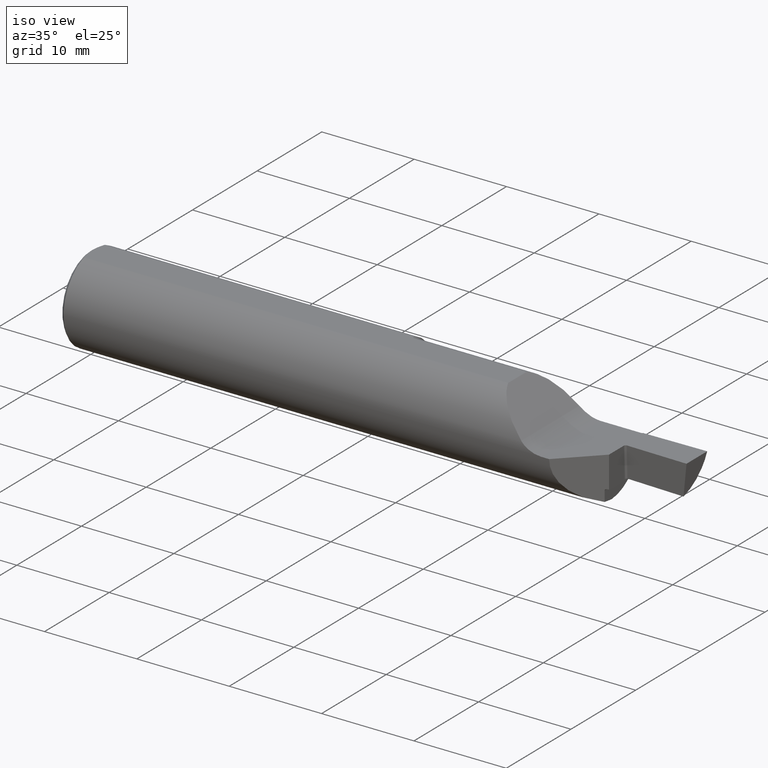
[diagram: clean part render]
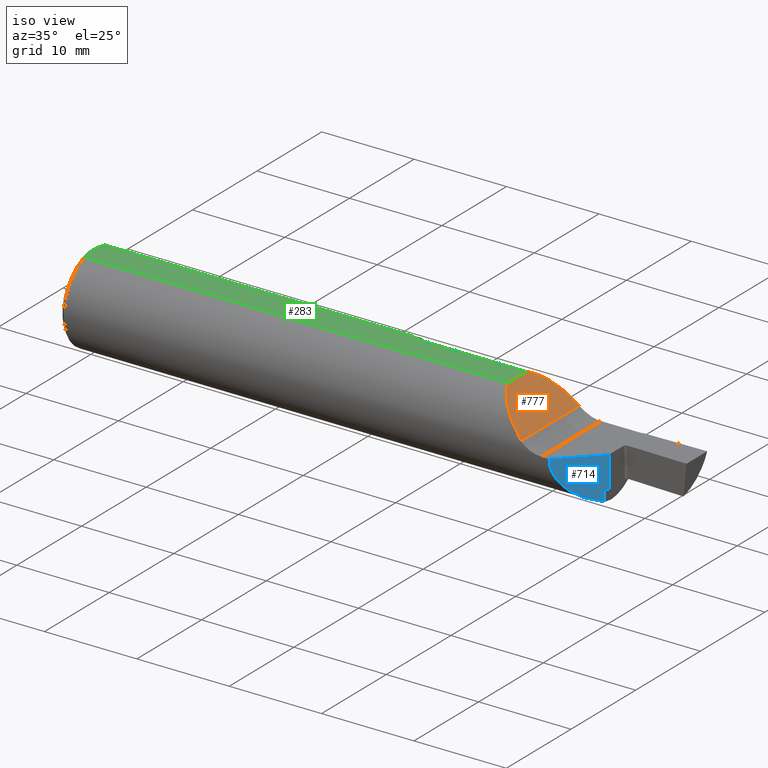
[diagram: same view with three faces highlighted in distinct colors, each labeled with its STEP entity id]
A machine part, iso view with three faces highlighted in distinct colors.
Their STEP definitions:

[orange] entity #777 — the highlighted planar face has unit normal (0.7071, -0, 0.7071).
#15 = VERTEX_POINT ( 'NONE', #43 ) ;
#21 = EDGE_LOOP ( 'NONE', ( #74, #577, #563, #86 ) ) ;
#36 = LINE ( 'NONE', #375, #550 ) ;
#39 = CARTESIAN_POINT ( 'NONE',  ( 1.823649999999999771, -0.06325108694718213631, 0.1763499999999999790 ) ) ;
#43 = CARTESIAN_POINT ( 'NONE',  ( 1.963388347648318932, -0.1837378823544007778, 0.03661165235168151871 ) ) ;
#66 = EDGE_CURVE ( 'NONE', #15, #699, #152, .T. ) ;
#74 = ORIENTED_EDGE ( 'NONE', *, *, #89, .T. ) ;
#86 = ORIENTED_EDGE ( 'NONE', *, *, #66, .F. ) ;
#89 = EDGE_CURVE ( 'NONE', #15, #275, #36, .T. ) ;
#98 =( BOUNDED_CURVE ( )  B_SPLINE_CURVE ( 3, ( #532, #210, #465, #677 ),
 .UNSPECIFIED., .F., .F. ) 
 B_SPLINE_CURVE_WITH_KNOTS ( ( 4, 4 ),
 ( 4.908913714375442439, 5.936585895212762587 ),
 .UNSPECIFIED. ) 
 CURVE ( )  GEOMETRIC_REPRESENTATION_ITEM ( )  RATIONAL_B_SPLINE_CURVE ( ( 1.000000000000000000, 0.9139102658081098562, 0.9139102658081098562, 1.000000000000000000 ) ) 
 REPRESENTATION_ITEM ( '' )  );
#150 = CARTESIAN_POINT ( 'NONE',  ( 1.963388347648318710, 0.1707400671470789555, 0.03661165235168143545 ) ) ;
#152 =( BOUNDED_CURVE ( )  B_SPLINE_CURVE ( 3, ( #232, #631, #707, #39 ),
 .UNSPECIFIED., .F., .T. ) 
 B_SPLINE_CURVE_WITH_KNOTS ( ( 4, 4 ),
 ( 4.909073120026993919, 5.938809479923476076 ),
 .UNSPECIFIED. ) 
 CURVE ( )  GEOMETRIC_REPRESENTATION_ITEM ( )  RATIONAL_B_SPLINE_CURVE ( ( 1.000000000000000000, 0.9135717604705588801, 0.9135717604705588801, 1.000000000000000000 ) ) 
 REPRESENTATION_ITEM ( '' )  );
#157 = LINE ( 'NONE', #496, #827 ) ;
#199 = AXIS2_PLACEMENT_3D ( 'NONE', #416, #492, #619 ) ;
#210 = CARTESIAN_POINT ( 'NONE',  ( 1.897454588124415586, 0.1576130183548815344, 0.1025454118755840249 ) ) ;
#232 = CARTESIAN_POINT ( 'NONE',  ( 1.963388347648318932, -0.1837378823544007778, 0.03661165235168151871 ) ) ;
#275 = VERTEX_POINT ( 'NONE', #150 ) ;
#350 = PLANE ( 'NONE',  #199 ) ;
#375 = CARTESIAN_POINT ( 'NONE',  ( 1.963388347648318932, 0.2873499999999999943, 0.03661165235168144932 ) ) ;
#391 = VERTEX_POINT ( 'NONE', #826 ) ;
#405 = EDGE_CURVE ( 'NONE', #699, #391, #157, .T. ) ;
#416 = CARTESIAN_POINT ( 'NONE',  ( 2.000000000000000000, 0.2873499999999999943, 6.488138984952624897E-16 ) ) ;
#465 = CARTESIAN_POINT ( 'NONE',  ( 1.846487386027261035, 0.1137732605392144519, 0.1535126139727385208 ) ) ;
#492 = DIRECTION ( 'NONE',  ( 0.7071067811865459074, -0.000000000000000000, 0.7071067811865492381 ) ) ;
#496 = CARTESIAN_POINT ( 'NONE',  ( 1.823649999999999771, 0.06325108694718213631, 0.1763499999999999790 ) ) ;
#532 = CARTESIAN_POINT ( 'NONE',  ( 1.963388347648318710, 0.1707400671470789555, 0.03661165235168143545 ) ) ;
#550 = VECTOR ( 'NONE', #776, 39.37007874015748143 ) ;
#563 = ORIENTED_EDGE ( 'NONE', *, *, #405, .F. ) ;
#577 = ORIENTED_EDGE ( 'NONE', *, *, #739, .T. ) ;
#619 = DIRECTION ( 'NONE',  ( 0.7071067811865492381, 0.000000000000000000, -0.7071067811865459074 ) ) ;
#631 = CARTESIAN_POINT ( 'NONE',  ( 1.897364539052141197, -0.1705819631923700119, 0.1026354609478592056 ) ) ;
#677 = CARTESIAN_POINT ( 'NONE',  ( 1.823649999999999771, 0.05054325299224035617, 0.1763499999999999790 ) ) ;
#696 = FACE_OUTER_BOUND ( 'NONE', #21, .T. ) ;
#699 = VERTEX_POINT ( 'NONE', #750 ) ;
#707 = CARTESIAN_POINT ( 'NONE',  ( 1.846378452100291501, -0.1266201564974553662, 0.1536215478997087214 ) ) ;
#739 = EDGE_CURVE ( 'NONE', #275, #391, #98, .T. ) ;
#750 = CARTESIAN_POINT ( 'NONE',  ( 1.823649999999999771, -0.06325108694718213631, 0.1763499999999999790 ) ) ;
#776 = DIRECTION ( 'NONE',  ( 0.000000000000000000, 1.000000000000000000, 0.000000000000000000 ) ) ;
#777 = ADVANCED_FACE ( 'NONE', ( #696 ), #350, .T. ) ;
#826 = CARTESIAN_POINT ( 'NONE',  ( 1.823649999999999771, 0.05054325299224035617, 0.1763499999999999790 ) ) ;
#827 = VECTOR ( 'NONE', #834, 39.37007874015748143 ) ;
#834 = DIRECTION ( 'NONE',  ( -0.000000000000000000, 1.000000000000000000, 0.000000000000000000 ) ) ;

[blue] entity #714 — the highlighted planar face has unit normal (-0.7071, 0.7071, 0).
#9 = ORIENTED_EDGE ( 'NONE', *, *, #711, .T. ) ;
#25 = CARTESIAN_POINT ( 'NONE',  ( 2.234999999999999876, -0.03734999999999999432, -0.1344876965665182389 ) ) ;
#60 = CARTESIAN_POINT ( 'NONE',  ( 2.224070280205729055, -0.04827971979427087001, -0.1810223498814073906 ) ) ;
#71 = CARTESIAN_POINT ( 'NONE',  ( 2.227932842058886642, -0.04441715794111287391, -0.1325528486153344787 ) ) ;
#122 = DIRECTION ( 'NONE',  ( -0.000000000000000000, -0.000000000000000000, 1.000000000000000000 ) ) ;
#143 = CARTESIAN_POINT ( 'NONE',  ( 2.224236754541994987, -0.04811324545800543806, -0.1350949406068810699 ) ) ;
#149 = CARTESIAN_POINT ( 'NONE',  ( 2.224070280205729055, -0.04827971979427086308, -0.1358449287211288825 ) ) ;
#156 = EDGE_CURVE ( 'NONE', #296, #852, #202, .T. ) ;
#171 = CARTESIAN_POINT ( 'NONE',  ( 2.234999999999999876, -0.03734999999999999432, -6.829619984160658046E-17 ) ) ;
#177 = CARTESIAN_POINT ( 'NONE',  ( 2.224070280205729055, -0.04827971979427087001, -0.1810223498814073906 ) ) ;
#190 = CARTESIAN_POINT ( 'NONE',  ( 2.234999999999999876, -0.03734999999999999432, -0.1344876965665182389 ) ) ;
#195 = CARTESIAN_POINT ( 'NONE',  ( 2.138778143966457712, -0.1335718560335421579, -0.1582744381402079736 ) ) ;
#202 = LINE ( 'NONE', #384, #239 ) ;
#206 = PLANE ( 'NONE',  #610 ) ;
#209 = ORIENTED_EDGE ( 'NONE', *, *, #371, .F. ) ;
#239 = VECTOR ( 'NONE', #122, 39.37007874015748143 ) ;
#248 = EDGE_CURVE ( 'NONE', #560, #385, #845, .T. ) ;
#254 = VERTEX_POINT ( 'NONE', #523 ) ;
#271 = CARTESIAN_POINT ( 'NONE',  ( 2.228985250716561950, -0.04336474928343794083, -0.1328576432028670817 ) ) ;
#278 = CARTESIAN_POINT ( 'NONE',  ( 2.224879016162464307, -0.04747098383753514672, -0.1338732983212888028 ) ) ;
#285 = ORIENTED_EDGE ( 'NONE', *, *, #754, .F. ) ;
#296 = VERTEX_POINT ( 'NONE', #25 ) ;
#333 = CARTESIAN_POINT ( 'NONE',  ( 2.228985250716561950, -0.04336474928343794083, -0.1328576432028670817 ) ) ;
#335 = FACE_OUTER_BOUND ( 'NONE', #486, .T. ) ;
#356 = DIRECTION ( 'NONE',  ( 0.000000000000000000, 0.000000000000000000, -1.000000000000000000 ) ) ;
#361 = CARTESIAN_POINT ( 'NONE',  ( 2.084999999999999964, -0.1873499999999999888, -6.829619984160658046E-17 ) ) ;
#368 = CARTESIAN_POINT ( 'NONE',  ( 1.992499999999999938, -0.2798499999999997656, 0.000000000000000000 ) ) ;
#371 = EDGE_CURVE ( 'NONE', #254, #560, #703, .T. ) ;
#384 = CARTESIAN_POINT ( 'NONE',  ( 2.234999999999999876, -0.03734999999999999432, -0.1873499999999999888 ) ) ;
#385 = VERTEX_POINT ( 'NONE', #361 ) ;
#394 = CARTESIAN_POINT ( 'NONE',  ( 2.084999999999999964, -0.1873499999999999888, -0.08827352940062963005 ) ) ;
#409 = DIRECTION ( 'NONE',  ( -0.7071067811865483499, -0.7071067811865467956, 0.000000000000000000 ) ) ;
#438 = CARTESIAN_POINT ( 'NONE',  ( 2.224070280205729055, -0.04827971979427087001, 0.03500000000000000333 ) ) ;
#468 = CARTESIAN_POINT ( 'NONE',  ( 2.225336863143647648, -0.04701313685635223616, -0.1334237589472539731 ) ) ;
#471 = B_SPLINE_CURVE_WITH_KNOTS ( 'NONE', 3,
 ( #535, #149, #143, #278, #468, #472, #71, #271 ),
 .UNSPECIFIED., .F., .F.,
 ( 4, 2, 2, 4 ),
 ( 0.000000000000000000, 5.754371121788219633E-05, 0.0001150874224357643927, 0.0002301748448715287853 ),
 .UNSPECIFIED. ) ;
#472 = CARTESIAN_POINT ( 'NONE',  ( 2.226814067570949351, -0.04553593242905076138, -0.1325587812827005996 ) ) ;
#486 = EDGE_LOOP ( 'NONE', ( #511, #209, #9, #683, #861, #285 ) ) ;
#511 = ORIENTED_EDGE ( 'NONE', *, *, #248, .F. ) ;
#523 = CARTESIAN_POINT ( 'NONE',  ( 2.224070280205729055, -0.04827971979427087001, -0.1366100197960539997 ) ) ;
#535 = CARTESIAN_POINT ( 'NONE',  ( 2.224070280205729055, -0.04827971979427087001, -0.1366100197960539997 ) ) ;
#552 = EDGE_CURVE ( 'NONE', #792, #296, #659, .T. ) ;
#560 = VERTEX_POINT ( 'NONE', #177 ) ;
#565 = VECTOR ( 'NONE', #356, 39.37007874015748143 ) ;
#599 = CARTESIAN_POINT ( 'NONE',  ( 2.230980377373828816, -0.04136962262617105424, -0.1334354641872747549 ) ) ;
#608 = DIRECTION ( 'NONE',  ( -0.7071067811865467956, 0.7071067811865483499, 0.000000000000000000 ) ) ;
#610 = AXIS2_PLACEMENT_3D ( 'NONE', #738, #608, #409 ) ;
#632 = DIRECTION ( 'NONE',  ( 0.7071067811865483499, 0.7071067811865467956, 0.000000000000000000 ) ) ;
#657 = CARTESIAN_POINT ( 'NONE',  ( 2.232985498812884551, -0.03936450118711563861, -0.1339788708684578056 ) ) ;
#658 = CARTESIAN_POINT ( 'NONE',  ( 2.084999999999999964, -0.1873499999999999888, -6.829619984160658046E-17 ) ) ;
#659 =( BOUNDED_CURVE ( )  B_SPLINE_CURVE ( 3, ( #333, #599, #657, #190 ),
 .UNSPECIFIED., .F., .F. ) 
 B_SPLINE_CURVE_WITH_KNOTS ( ( 4, 4 ),
 ( 1.284111299773391668, 1.319139245857699372 ),
 .UNSPECIFIED. ) 
 CURVE ( )  GEOMETRIC_REPRESENTATION_ITEM ( )  RATIONAL_B_SPLINE_CURVE ( ( 1.000000000000000000, 0.9998977561963152683, 0.9998977561963152683, 1.000000000000000000 ) ) 
 REPRESENTATION_ITEM ( '' )  );
#679 = CARTESIAN_POINT ( 'NONE',  ( 2.228985250716561950, -0.04336474928343794083, -0.1328576432028670817 ) ) ;
#683 = ORIENTED_EDGE ( 'NONE', *, *, #552, .T. ) ;
#702 = LINE ( 'NONE', #368, #742 ) ;
#703 = LINE ( 'NONE', #438, #565 ) ;
#711 = EDGE_CURVE ( 'NONE', #254, #792, #471, .T. ) ;
#714 = ADVANCED_FACE ( 'NONE', ( #335 ), #206, .F. ) ;
#738 = CARTESIAN_POINT ( 'NONE',  ( 2.234999999999999876, -0.03734999999999999432, -0.1873499999999999888 ) ) ;
#742 = VECTOR ( 'NONE', #632, 39.37007874015748143 ) ;
#754 = EDGE_CURVE ( 'NONE', #385, #852, #702, .T. ) ;
#792 = VERTEX_POINT ( 'NONE', #679 ) ;
#845 =( BOUNDED_CURVE ( )  B_SPLINE_CURVE ( 3, ( #60, #195, #394, #658 ),
 .UNSPECIFIED., .F., .F. ) 
 B_SPLINE_CURVE_WITH_KNOTS ( ( 4, 4 ),
 ( 4.973027954241882043, 6.283185307179586232 ),
 .UNSPECIFIED. ) 
 CURVE ( )  GEOMETRIC_REPRESENTATION_ITEM ( )  RATIONAL_B_SPLINE_CURVE ( ( 1.000000000000000000, 0.8619999994326646986, 0.8619999994326646986, 1.000000000000000000 ) ) 
 REPRESENTATION_ITEM ( '' )  );
#852 = VERTEX_POINT ( 'NONE', #171 ) ;
#861 = ORIENTED_EDGE ( 'NONE', *, *, #156, .T. ) ;

[green] entity #283 — the highlighted planar face has unit normal (0, 0, -1).
#6 = CARTESIAN_POINT ( 'NONE',  ( 0.01157250466904289656, -0.05309883057899358189, 0.1763500000000000068 ) ) ;
#32 = CARTESIAN_POINT ( 'NONE',  ( 0.003999999999999476197, 2.550090563692220756E-17, 0.1763499999999999790 ) ) ;
#34 = VERTEX_POINT ( 'NONE', #115 ) ;
#38 = LINE ( 'NONE', #689, #469 ) ;
#65 = CARTESIAN_POINT ( 'NONE',  ( 0.004994273251992769995, -0.02144446570098899885, 0.1763499999999999790 ) ) ;
#75 = DIRECTION ( 'NONE',  ( 1.000000000000000000, 0.000000000000000000, 0.000000000000000000 ) ) ;
#77 = ORIENTED_EDGE ( 'NONE', *, *, #843, .F. ) ;
#78 = LINE ( 'NONE', #670, #344 ) ;
#79 = CARTESIAN_POINT ( 'NONE',  ( 1.338826947156392722, 0.05089100678216058188, 0.1763500000000000068 ) ) ;
#85 = DIRECTION ( 'NONE',  ( 0.000000000000000000, 0.000000000000000000, -1.000000000000000000 ) ) ;
#115 = CARTESIAN_POINT ( 'NONE',  ( 0.01499999999999943046, 0.06325108694718213631, 0.1763499999999999790 ) ) ;
#128 = CARTESIAN_POINT ( 'NONE',  ( 0.005015444644058507026, 0.02160243875479323644, 0.1763499999999999790 ) ) ;
#138 = CARTESIAN_POINT ( 'NONE',  ( 0.003999999999999476197, 2.550090563692220756E-17, 0.1763499999999999790 ) ) ;
#144 = CARTESIAN_POINT ( 'NONE',  ( 1.337621628564846787, 0.05225604298120335722, 0.1763500000000000068 ) ) ;
#147 = FACE_OUTER_BOUND ( 'NONE', #780, .T. ) ;
#157 = LINE ( 'NONE', #496, #827 ) ;
#158 = CARTESIAN_POINT ( 'NONE',  ( 1.340000000000000080, 0.05054325299224017576, 0.1763500000000000068 ) ) ;
#166 = AXIS2_PLACEMENT_3D ( 'NONE', #824, #85, #340 ) ;
#189 = VERTEX_POINT ( 'NONE', #466 ) ;
#211 = B_SPLINE_CURVE_WITH_KNOTS ( 'NONE', 3,
 ( #479, #556, #279, #482, #216, #144, #606, #79, #542, #753 ),
 .UNSPECIFIED., .F., .F.,
 ( 4, 2, 2, 2, 4 ),
 ( 0.001068967629214199935, 0.001252800944429019675, 0.001344717602036429437, 0.001390675930840129656, 0.001436634259643829875 ),
 .UNSPECIFIED. ) ;
#216 = CARTESIAN_POINT ( 'NONE',  ( 1.336737058446424209, 0.05385394031618935540, 0.1763500000000000068 ) ) ;
#268 = VERTEX_POINT ( 'NONE', #158 ) ;
#279 = CARTESIAN_POINT ( 'NONE',  ( 1.335371528663762408, 0.05848268389675807810, 0.1763499999999999790 ) ) ;
#283 = ADVANCED_FACE ( 'NONE', ( #147 ), #343, .F. ) ;
#289 = ORIENTED_EDGE ( 'NONE', *, *, #405, .T. ) ;
#321 = CARTESIAN_POINT ( 'NONE',  ( 0.008794551420594657470, 0.04267918597792697000, 0.1763499999999999790 ) ) ;
#328 = CARTESIAN_POINT ( 'NONE',  ( 0.008771136374093822449, -0.04258802525788809440, 0.1763499999999999790 ) ) ;
#340 = DIRECTION ( 'NONE',  ( -1.000000000000000000, 0.000000000000000000, -0.000000000000000000 ) ) ;
#341 = VERTEX_POINT ( 'NONE', #32 ) ;
#343 = PLANE ( 'NONE',  #166 ) ;
#344 = VECTOR ( 'NONE', #75, 39.37007874015748143 ) ;
#349 = EDGE_CURVE ( 'NONE', #570, #268, #211, .T. ) ;
#354 = DIRECTION ( 'NONE',  ( 1.000000000000000000, 0.000000000000000000, 0.000000000000000000 ) ) ;
#377 = ORIENTED_EDGE ( 'NONE', *, *, #682, .T. ) ;
#391 = VERTEX_POINT ( 'NONE', #826 ) ;
#392 = CARTESIAN_POINT ( 'NONE',  ( 0.003999999999999440635, 0.01078773779713886743, 0.1763500000000000068 ) ) ;
#405 = EDGE_CURVE ( 'NONE', #699, #391, #157, .T. ) ;
#439 = ORIENTED_EDGE ( 'NONE', *, *, #485, .F. ) ;
#449 = CARTESIAN_POINT ( 'NONE',  ( 0.01499999999999943046, -0.06325108694718213631, 0.1763499999999999790 ) ) ;
#466 = CARTESIAN_POINT ( 'NONE',  ( 0.01499999999999943046, -0.06325108694718213631, 0.1763499999999999790 ) ) ;
#467 = ORIENTED_EDGE ( 'NONE', *, *, #623, .T. ) ;
#469 = VECTOR ( 'NONE', #354, 39.37007874015748143 ) ;
#479 = CARTESIAN_POINT ( 'NONE',  ( 1.335009689054889037, 0.06325108694718309388, 0.1763499999999996737 ) ) ;
#482 = CARTESIAN_POINT ( 'NONE',  ( 1.336331159115146772, 0.05501236657328722329, 0.1763500000000000068 ) ) ;
#485 = EDGE_CURVE ( 'NONE', #34, #570, #38, .T. ) ;
#496 = CARTESIAN_POINT ( 'NONE',  ( 1.823649999999999771, 0.06325108694718213631, 0.1763499999999999790 ) ) ;
#500 = CARTESIAN_POINT ( 'NONE',  ( 0.000000000000000000, -0.06325108694718213631, 0.1763499999999999790 ) ) ;
#514 = CARTESIAN_POINT ( 'NONE',  ( 0.01499999999999943046, 0.06325108694718213631, 0.1763499999999999790 ) ) ;
#542 = CARTESIAN_POINT ( 'NONE',  ( 1.339391378728019832, 0.05054325299224062679, 0.1763499999999999512 ) ) ;
#556 = CARTESIAN_POINT ( 'NONE',  ( 1.335069243236268077, 0.06084819611239657144, 0.1763499999999999790 ) ) ;
#564 = LINE ( 'NONE', #500, #652 ) ;
#570 = VERTEX_POINT ( 'NONE', #574 ) ;
#574 = CARTESIAN_POINT ( 'NONE',  ( 1.335009689054889037, 0.06325108694718309388, 0.1763499999999996737 ) ) ;
#586 = B_SPLINE_CURVE_WITH_KNOTS ( 'NONE', 3,
 ( #514, #651, #321, #128, #392, #138 ),
 .UNSPECIFIED., .F., .F.,
 ( 4, 2, 4 ),
 ( 0.004067309716740378708, 0.004877052610379914790, 0.005686795504019450005 ),
 .UNSPECIFIED. ) ;
#606 = CARTESIAN_POINT ( 'NONE',  ( 1.337958805214830571, 0.05174923270990745144, 0.1763499999999999235 ) ) ;
#623 = EDGE_CURVE ( 'NONE', #341, #189, #850, .T. ) ;
#628 = ORIENTED_EDGE ( 'NONE', *, *, #349, .F. ) ;
#651 = CARTESIAN_POINT ( 'NONE',  ( 0.01155164730757253858, 0.05303705098182932148, 0.1763499999999999512 ) ) ;
#652 = VECTOR ( 'NONE', #705, 39.37007874015748143 ) ;
#660 = CARTESIAN_POINT ( 'NONE',  ( 0.003999999999999476197, 2.550090563692220756E-17, 0.1763499999999999790 ) ) ;
#670 = CARTESIAN_POINT ( 'NONE',  ( 0.9958286716179119979, 0.05054325299224023127, 0.1763499999999999790 ) ) ;
#682 = EDGE_CURVE ( 'NONE', #34, #341, #586, .T. ) ;
#689 = CARTESIAN_POINT ( 'NONE',  ( 0.000000000000000000, 0.06325108694718213631, 0.1763499999999999790 ) ) ;
#699 = VERTEX_POINT ( 'NONE', #750 ) ;
#705 = DIRECTION ( 'NONE',  ( -1.000000000000000000, -0.000000000000000000, -0.000000000000000000 ) ) ;
#741 = EDGE_CURVE ( 'NONE', #268, #391, #78, .T. ) ;
#750 = CARTESIAN_POINT ( 'NONE',  ( 1.823649999999999771, -0.06325108694718213631, 0.1763499999999999790 ) ) ;
#753 = CARTESIAN_POINT ( 'NONE',  ( 1.340000000000000080, 0.05054325299224017576, 0.1763500000000000068 ) ) ;
#780 = EDGE_LOOP ( 'NONE', ( #836, #628, #439, #377, #467, #77, #289 ) ) ;
#794 = CARTESIAN_POINT ( 'NONE',  ( 0.003999999999999438900, -0.01077599264701411402, 0.1763499999999999512 ) ) ;
#824 = CARTESIAN_POINT ( 'NONE',  ( 0.000000000000000000, -0.2873500000000001053, 0.1763499999999999790 ) ) ;
#826 = CARTESIAN_POINT ( 'NONE',  ( 1.823649999999999771, 0.05054325299224035617, 0.1763499999999999790 ) ) ;
#827 = VECTOR ( 'NONE', #834, 39.37007874015748143 ) ;
#834 = DIRECTION ( 'NONE',  ( -0.000000000000000000, 1.000000000000000000, 0.000000000000000000 ) ) ;
#836 = ORIENTED_EDGE ( 'NONE', *, *, #741, .F. ) ;
#843 = EDGE_CURVE ( 'NONE', #699, #189, #564, .T. ) ;
#850 = B_SPLINE_CURVE_WITH_KNOTS ( 'NONE', 3,
 ( #660, #794, #65, #328, #6, #449 ),
 .UNSPECIFIED., .F., .F.,
 ( 4, 2, 4 ),
 ( 0.005686795504019450005, 0.006495656790038641104, 0.007304518076057833070 ),
 .UNSPECIFIED. ) ;